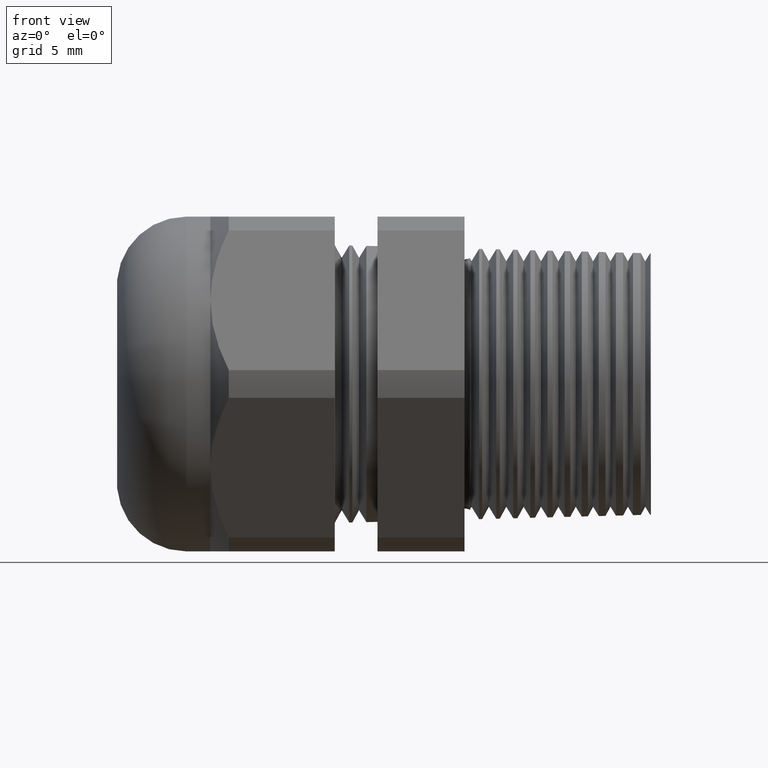
[diagram: clean part render]
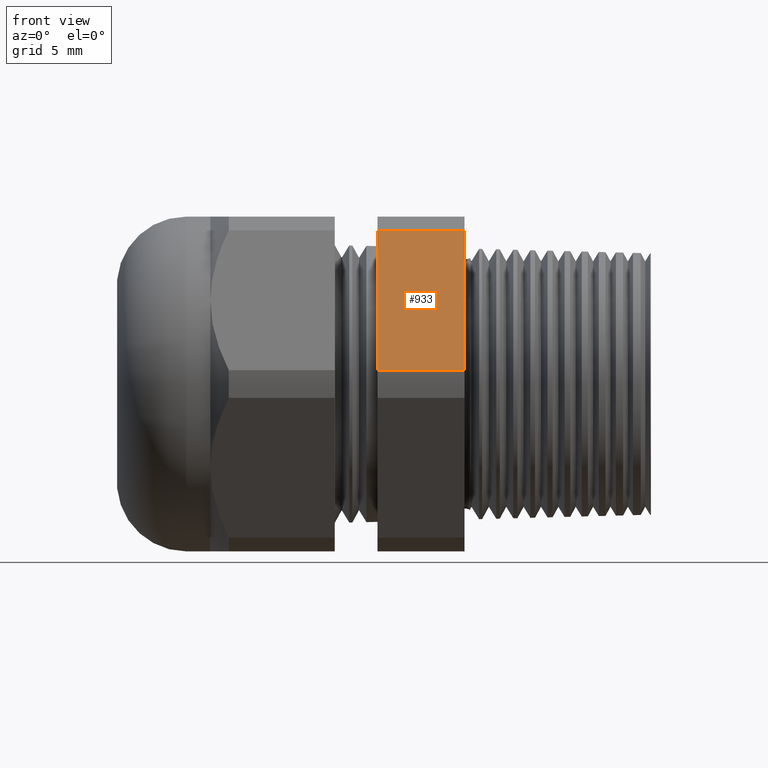
[diagram: same view with one face highlighted and labeled with its STEP entity id]
A machine part, front view. The second image highlights one B-rep face of the part: STEP entity #933.
In plain terms, the highlighted planar face has unit normal (0, -0.866, 0.5).
Its self-contained STEP definition (entity closure, byte-faithful):
#877 = EDGE_CURVE ( 'NONE', #1287, #878, #2908, .T. ) ;
#878 = VERTEX_POINT ( 'NONE', #2900 ) ;
#933 = ADVANCED_FACE ( 'NONE', ( #3051 ), #3050, .T. ) ;
#934 = EDGE_LOOP ( 'NONE', ( #935, #936, #937, #940 ) ) ;
#935 = ORIENTED_EDGE ( 'NONE', *, *, #877, .F. ) ;
#936 = ORIENTED_EDGE ( 'NONE', *, *, #1286, .F. ) ;
#937 = ORIENTED_EDGE ( 'NONE', *, *, #938, .T. ) ;
#938 = EDGE_CURVE ( 'NONE', #1284, #939, #3045, .T. ) ;
#939 = VERTEX_POINT ( 'NONE', #3041 ) ;
#940 = ORIENTED_EDGE ( 'NONE', *, *, #941, .F. ) ;
#941 = EDGE_CURVE ( 'NONE', #878, #939, #3040, .T. ) ;
#1284 = VERTEX_POINT ( 'NONE', #3522 ) ;
#1286 = EDGE_CURVE ( 'NONE', #1284, #1287, #3520, .T. ) ;
#1287 = VERTEX_POINT ( 'NONE', #3569 ) ;
#2900 = CARTESIAN_POINT ( 'NONE',  ( -0.5855905511811022600, -0.5866618723924792400, 0.04387183015273651800 ) ) ;
#2901 = DIRECTION ( 'NONE',  ( -1.000000000000000000, 0.0000000000000000000, 0.0000000000000000000 ) ) ;
#2902 = VECTOR ( 'NONE', #2901, 39.37007874015748100 ) ;
#2903 = CARTESIAN_POINT ( 'NONE',  ( 0.2800000000000000300, -0.5866618723924792400, 0.04387183015273651800 ) ) ;
#2908 = LINE ( 'NONE', #2903, #2902 ) ;
#3037 = DIRECTION ( 'NONE',  ( 0.0000000000000000000, 0.4999999999999996100, 0.8660254037844388200 ) ) ;
#3038 = VECTOR ( 'NONE', #3037, 39.37007874015748900 ) ;
#3039 = CARTESIAN_POINT ( 'NONE',  ( -0.5855905511811022600, -0.1939934640057529900, 0.7239934640057521500 ) ) ;
#3040 = LINE ( 'NONE', #3039, #3038 ) ;
#3041 = CARTESIAN_POINT ( 'NONE',  ( -0.5855905511811022600, -0.3313250556190262000, 0.4861281698472629300 ) ) ;
#3042 = DIRECTION ( 'NONE',  ( -1.000000000000000000, 0.0000000000000000000, 0.0000000000000000000 ) ) ;
#3043 = VECTOR ( 'NONE', #3042, 39.37007874015748100 ) ;
#3044 = CARTESIAN_POINT ( 'NONE',  ( 0.2800000000000000300, -0.3313250556190262000, 0.4861281698472629300 ) ) ;
#3045 = LINE ( 'NONE', #3044, #3043 ) ;
#3046 = DIRECTION ( 'NONE',  ( 0.0000000000000000000, -0.4999999999999996100, -0.8660254037844388200 ) ) ;
#3047 = DIRECTION ( 'NONE',  ( 0.0000000000000000000, -0.8660254037844388200, 0.4999999999999996100 ) ) ;
#3048 = CARTESIAN_POINT ( 'NONE',  ( 0.2800000000000000300, -0.5866618723924791300, 0.04387183015273688600 ) ) ;
#3049 = AXIS2_PLACEMENT_3D ( 'NONE', #3048, #3047, #3046 ) ;
#3050 = PLANE ( 'NONE',  #3049 ) ;
#3051 = FACE_OUTER_BOUND ( 'NONE', #934, .T. ) ;
#3517 = DIRECTION ( 'NONE',  ( 0.0000000000000000000, -0.4999999999999996100, -0.8660254037844388200 ) ) ;
#3518 = VECTOR ( 'NONE', #3517, 39.37007874015748900 ) ;
#3519 = CARTESIAN_POINT ( 'NONE',  ( -0.3100000000000000000, -0.1939934640057528500, 0.7239934640057521500 ) ) ;
#3520 = LINE ( 'NONE', #3519, #3518 ) ;
#3522 = CARTESIAN_POINT ( 'NONE',  ( -0.3100000000000000000, -0.3313250556190262000, 0.4861281698472629300 ) ) ;
#3569 = CARTESIAN_POINT ( 'NONE',  ( -0.3100000000000000000, -0.5866618723924792400, 0.04387183015273651800 ) ) ;